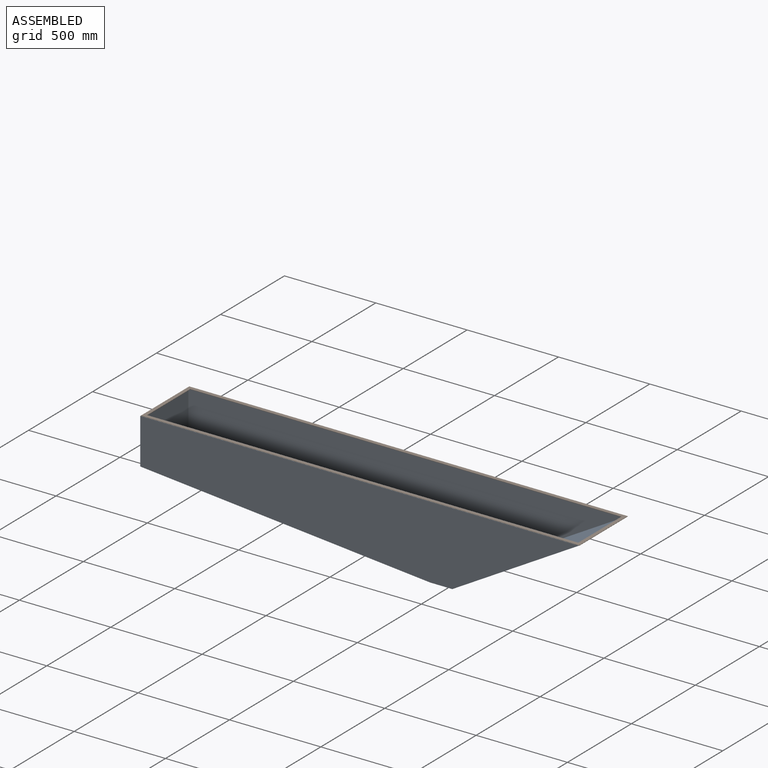
[diagram: assembled view]
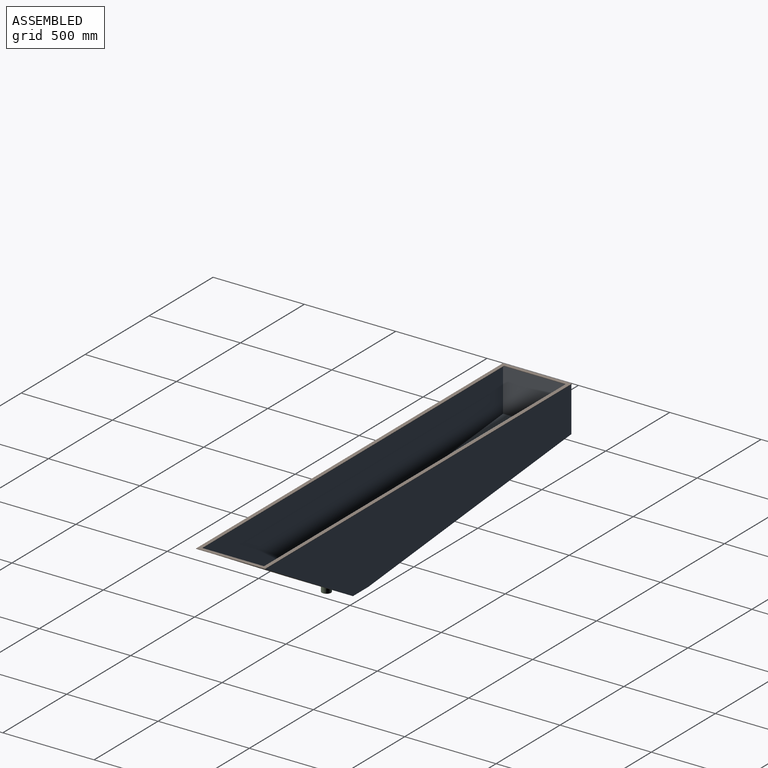
[diagram: assembled view, second angle]
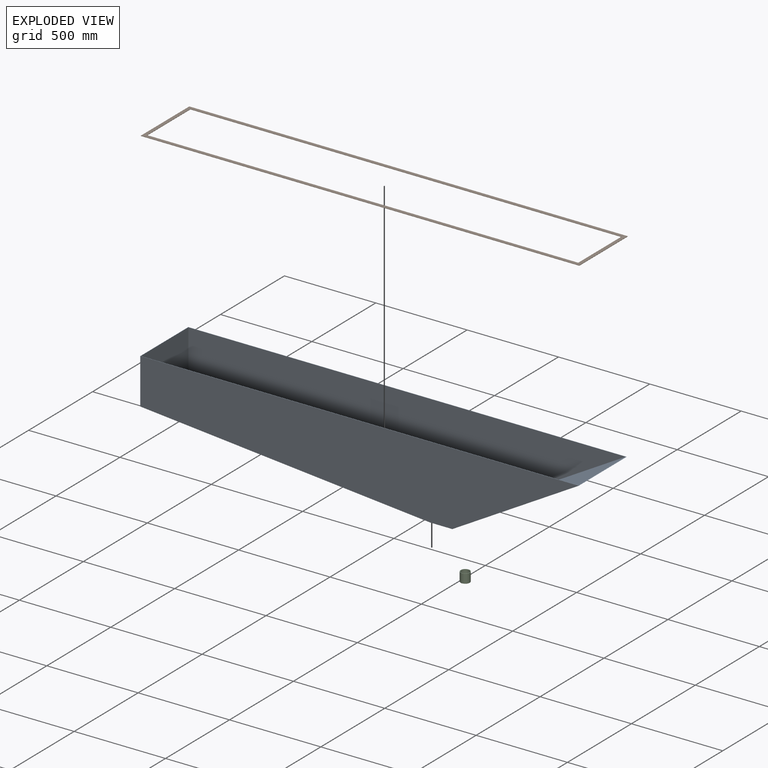
[diagram: exploded view]
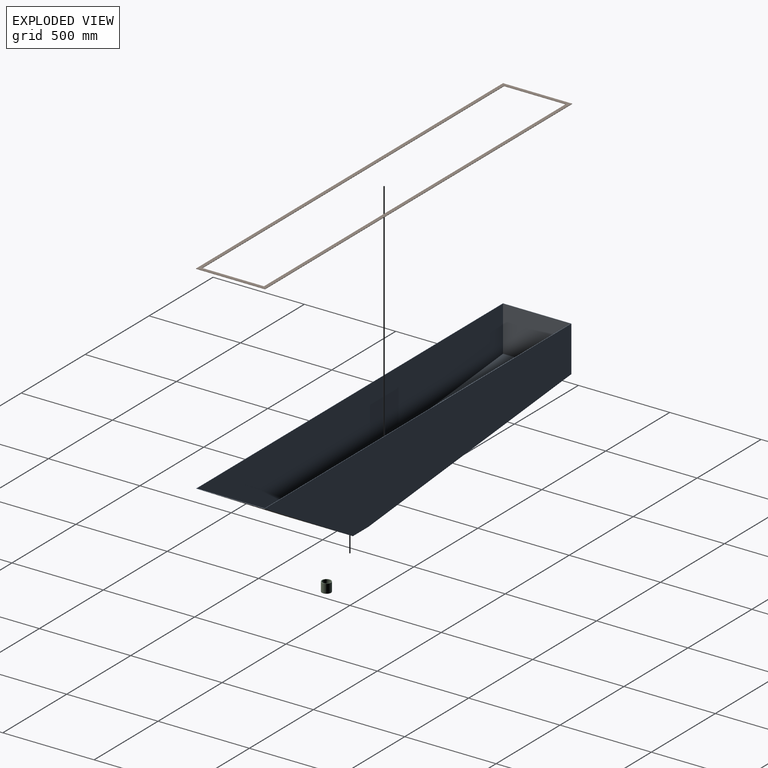
[diagram: exploded view, second angle]
ASSEMBLY  parts=3 mates=2
PART A: 14 faces, bbox 2400x375x399.4 mm
  f0: plane 2400x375mm, normal (0,0,1), area 11826mm2, adj f2,f3,f5,f6,f8,f9,f11,f12
  f1: plane 375x120.94mm, normal (0,0,-1), area 43389.4mm2, adj f2,f4,f5,f6,f13
  f2: plane 691.86x399.44mm, normal (0.5,0,-0.87), area 299582.4mm2, adj f0,f1,f5,f6
  f3: plane 375x250mm, normal (-1,0,0), area 93750mm2, adj f0,f4,f5,f6
  f4: plane 1587.2x375mm, normal (-0.09,0,-1), area 597833.6mm2, adj f1,f3,f5,f6
  f5: plane 2400x399.44mm, normal (0,-1,0), area 701886.8mm2, adj f0,f1,f2,f3,f4
  f6: plane 2400x399.44mm, normal (0,1,0), area 701886.8mm2, adj f0,f1,f2,f3,f4
  f7: plane 371x120.31mm, normal (0,0,1), area 42671.9mm2, adj f8,f10,f11,f12,f13
  f8: plane 688.39x397.44mm, normal (-0.5,0,0.87), area 294902.9mm2, adj f0,f7,f11,f12
  f9: plane 371x248.18mm, normal (1,0,0), area 92074.6mm2, adj f0,f10,f11,f12
  f10: plane 1585.3x371mm, normal (0.09,0,1), area 590746.5mm2, adj f7,f9,f11,f12
  f11: plane 2394x397.44mm, normal (0,1,0), area 696367.1mm2, adj f0,f7,f8,f9,f10
  f12: plane 2394x397.44mm, normal (0,-1,0), area 696367.1mm2, adj f0,f7,f8,f9,f10
  f13: cylinder r=25mm len=50mm, axis (0,0,1), area 314.2mm2, adj f1,f7
PART B: 10 faces, bbox 2400x378x2 mm
  f0: plane 2360x2mm, normal (0,1,0), area 4720mm2, adj f1,f7,f8,f9
  f1: plane 338x2mm, normal (1,0,0), area 676mm2, adj f0,f2,f8,f9
  f2: plane 2360x2mm, normal (0,-1,0), area 4720mm2, adj f1,f7,f8,f9
  f3: plane 378x2mm, normal (1,0,0), area 756mm2, adj f4,f6,f8,f9
  f4: plane 2400x2mm, normal (0,1,0), area 4800mm2, adj f3,f5,f8,f9
  f5: plane 378x2mm, normal (-1,0,0), area 756mm2, adj f4,f6,f8,f9
  f6: plane 2400x2mm, normal (0,-1,0), area 4800mm2, adj f3,f5,f8,f9
  f7: plane 338x2mm, normal (-1,0,0), area 676mm2, adj f0,f2,f8,f9
  f8: plane 2400x378mm, normal (0,0,1), area 109520mm2, adj f0,f1,f2,f3,f4,f5,f6,f7
  f9: plane 2400x378mm, normal (0,0,-1), area 109520mm2, adj f0,f1,f2,f3,f4,f5,f6,f7
PART C: 6 faces, bbox 50x50x50 mm
  f0: cylinder r=25mm len=50mm, axis (0,0,-1), area 7854mm2, adj f1,f2
  f1: plane 50x50mm, normal (0,0,1), area 426.3mm2, adj f0,f5
  f2: plane 50x50mm, normal (0,0,-1), area 301.6mm2, adj f0,f3
  f3: cylinder r=23mm len=48mm, axis (0,0,-1), area 6936.6mm2, adj f2,f4
  f4: plane 46x46mm, normal (0,0,-1), area 124.7mm2, adj f3,f5
  f5: cylinder r=22.12mm len=44.24mm, axis (0,0,-1), area 278mm2, adj f1,f4
PLACE A t=(152.57,714.27,-281.97)mm
PLACE B t=(276.19,530.27,117.47)mm
PLACE C t=(721.64,526.77,-331.97)mm
MATE fastened C.f0 <-> A.f13  axis (0,0,1) through (721.64,526.77,-281.97)mm
MATE fastened B.f9 <-> A.f0  axis (0,0,1) through (-923.81,341.27,117.47)mm
